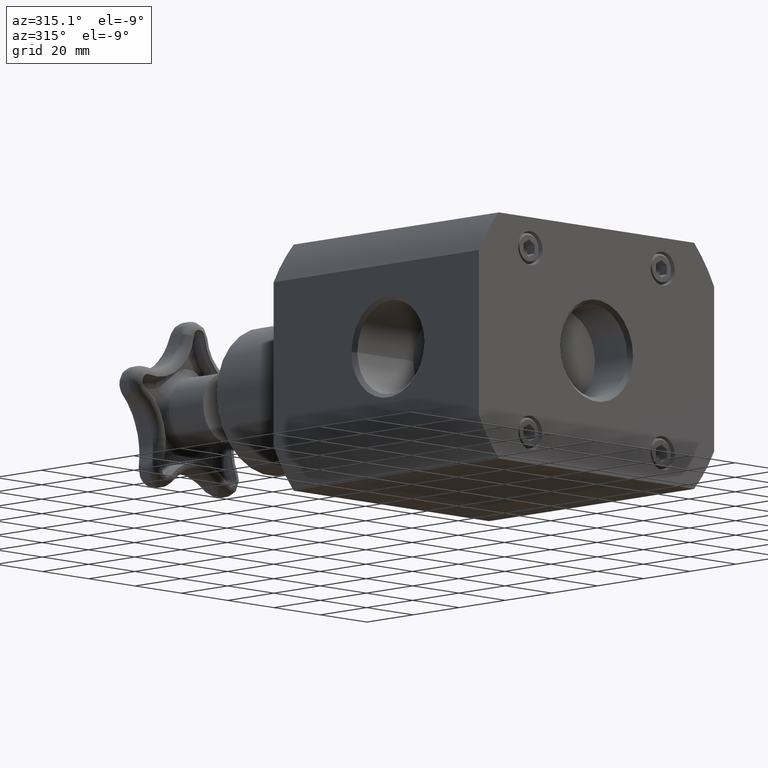
[diagram: clean part render]
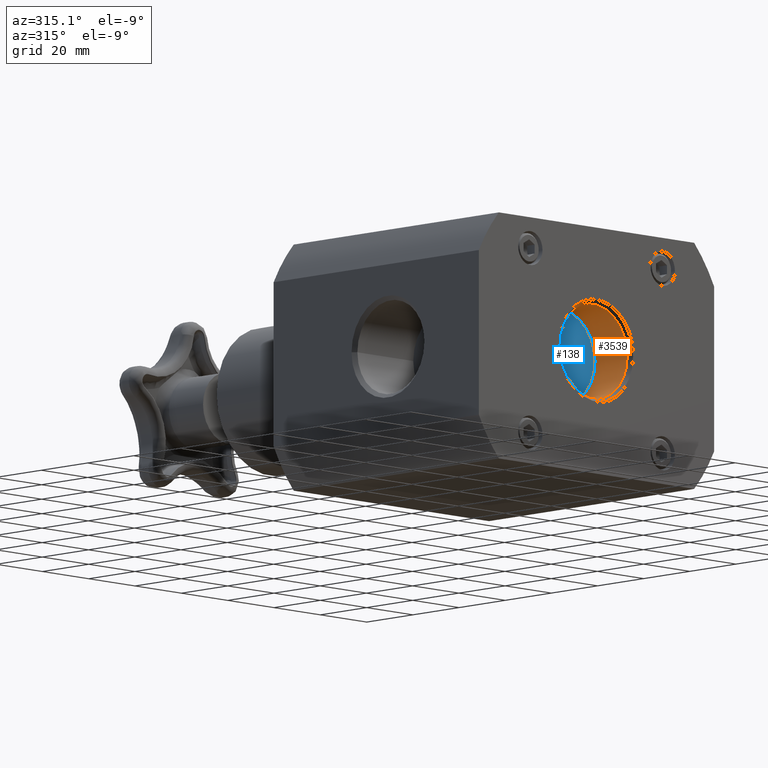
[diagram: same view with the hole feature highlighted: cylindrical wall and planar end face, labeled with their STEP entity ids]
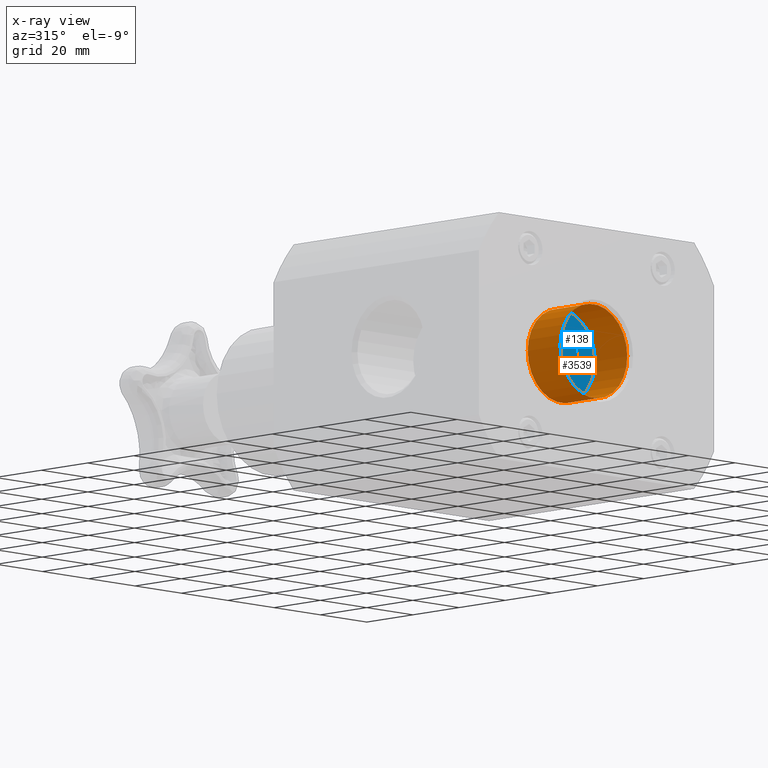
[diagram: x-ray of the same camera — body ghosted, the hole faces saturated]
A machine part, auxiliary view. The highlighted faces form one hole feature of diameter 29.0576 mm: the cylindrical wall (entity #3539, orange) and its adjacent planar end face (entity #138, blue) — they share a circular edge in the B-rep.
The next image is the same camera in x-ray (body ghosted, the hole faces saturated) — the bore reads through the body.
Wall:
#127=CARTESIAN_POINT('',(-0.572000000000000,0.600000000000000,1.260385E-016));
#128=VERTEX_POINT('',#127);
#129=CARTESIAN_POINT('',(-2.997602E-016,0.600000000000000,1.720464E-016));
#130=DIRECTION('',(0.0,1.0,0.0));
#131=DIRECTION('',(-1.0,0.0,0.0));
#132=AXIS2_PLACEMENT_3D('',#129,#130,#131);
#133=CIRCLE('',#132,0.572000000000000);
#134=EDGE_CURVE('',#128,#128,#133,.T.);
#3520=CARTESIAN_POINT('',(-1.498801E-016,0.300000000000000,8.602320E-017));
#3521=DIRECTION('',(-4.996004E-016,1.0,2.867440E-016));
#3522=DIRECTION('',(-1.0,0.0,0.0));
#3523=AXIS2_PLACEMENT_3D('',#3520,#3521,#3522);
#3524=CYLINDRICAL_SURFACE('',#3523,0.572000000000000);
#3525=ORIENTED_EDGE('',*,*,#134,.T.);
#3526=EDGE_LOOP('',(#3525));
#3527=FACE_OUTER_BOUND('',#3526,.T.);
#3528=CARTESIAN_POINT('',(-0.572000000000000,0.050000000000000,3.837905E-017));
#3529=VERTEX_POINT('',#3528);
#3530=CARTESIAN_POINT('',(-2.498002E-017,0.050000000000000,1.433720E-017));
#3531=DIRECTION('',(0.0,1.0,0.0));
#3532=DIRECTION('',(1.0,0.0,0.0));
#3533=AXIS2_PLACEMENT_3D('',#3530,#3531,#3532);
#3534=CIRCLE('',#3533,0.572000000000000);
#3535=EDGE_CURVE('',#3529,#3529,#3534,.T.);
#3536=ORIENTED_EDGE('',*,*,#3535,.F.);
#3537=EDGE_LOOP('',(#3536));
#3538=FACE_BOUND('',#3537,.T.);
#3539=ADVANCED_FACE('',(#3527,#3538),#3524,.F.);
End face:
#122=CARTESIAN_POINT('',(-2.997602E-016,0.600000000000000,1.720464E-016));
#123=DIRECTION('',(0.0,1.0,0.0));
#124=DIRECTION('',(0.0,0.0,1.0));
#125=AXIS2_PLACEMENT_3D('',#122,#123,#124);
#126=PLANE('',#125);
#127=CARTESIAN_POINT('',(-0.572000000000000,0.600000000000000,1.260385E-016));
#128=VERTEX_POINT('',#127);
#129=CARTESIAN_POINT('',(-2.997602E-016,0.600000000000000,1.720464E-016));
#130=DIRECTION('',(0.0,1.0,0.0));
#131=DIRECTION('',(-1.0,0.0,0.0));
#132=AXIS2_PLACEMENT_3D('',#129,#130,#131);
#133=CIRCLE('',#132,0.572000000000000);
#134=EDGE_CURVE('',#128,#128,#133,.T.);
#135=ORIENTED_EDGE('',*,*,#134,.F.);
#136=EDGE_LOOP('',(#135));
#137=FACE_OUTER_BOUND('',#136,.T.);
#138=ADVANCED_FACE('',(#137),#126,.F.);